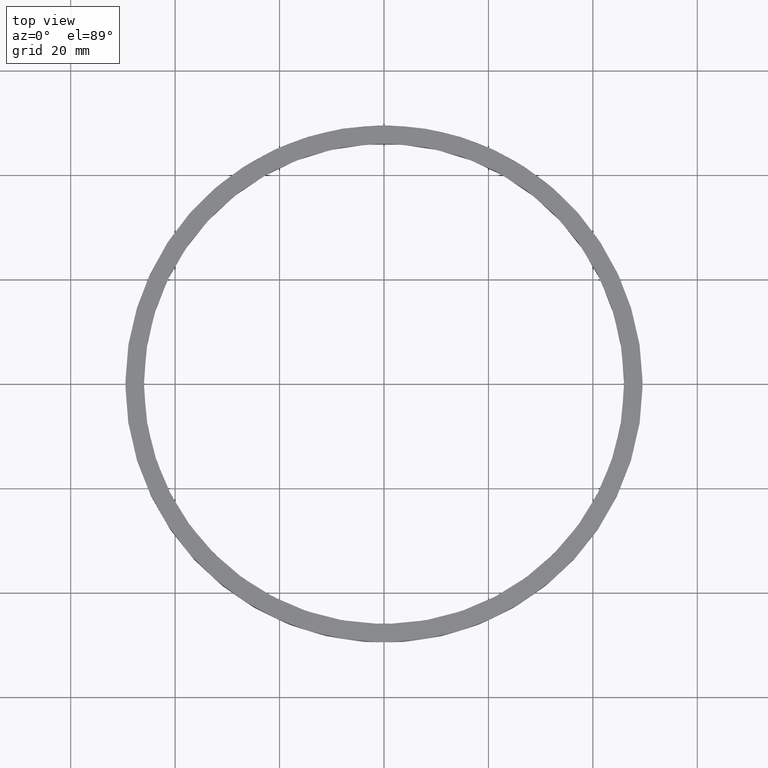
[diagram: clean part render]
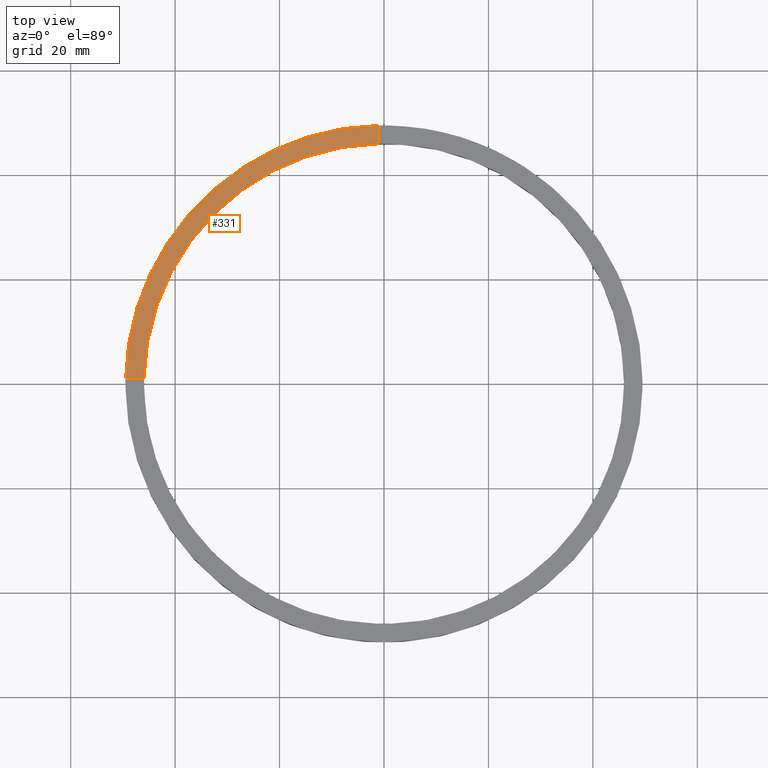
[diagram: same view with one face highlighted and labeled with its STEP entity id]
A machine part, top view. The second image highlights one B-rep face of the part: STEP entity #331.
In plain terms, the highlighted planar face has unit normal (0, 0, 1).
Its self-contained STEP definition (entity closure, byte-faithful):
#47 = EDGE_CURVE ( 'NONE', #665, #526, #174, .T. ) ;
#48 = DIRECTION ( 'NONE',  ( 0.000000000000000000, 0.000000000000000000, 1.000000000000000000 ) ) ;
#101 = AXIS2_PLACEMENT_3D ( 'NONE', #408, #374, #611 ) ;
#174 = LINE ( 'NONE', #350, #709 ) ;
#203 = VECTOR ( 'NONE', #661, 1000.000000000000000 ) ;
#206 = CIRCLE ( 'NONE', #101, 49.50000000000000711 ) ;
#238 = ORIENTED_EDGE ( 'NONE', *, *, #513, .T. ) ;
#247 = VERTEX_POINT ( 'NONE', #524 ) ;
#257 = PLANE ( 'NONE',  #458 ) ;
#260 = DIRECTION ( 'NONE',  ( 1.000000000000000000, 0.000000000000000000, -0.000000000000000000 ) ) ;
#283 = ORIENTED_EDGE ( 'NONE', *, *, #492, .F. ) ;
#305 = EDGE_LOOP ( 'NONE', ( #283, #238, #523, #466 ) ) ;
#331 = ADVANCED_FACE ( 'NONE', ( #727 ), #257, .T. ) ;
#332 = CIRCLE ( 'NONE', #666, 46.00000000000000000 ) ;
#350 = CARTESIAN_POINT ( 'NONE',  ( -39.50000000000019185, 0.9999999999999708011, 4.500000000000000000 ) ) ;
#374 = DIRECTION ( 'NONE',  ( 0.000000000000000000, 0.000000000000000000, 1.000000000000000000 ) ) ;
#408 = CARTESIAN_POINT ( 'NONE',  ( 0.000000000000000000, 0.000000000000000000, 4.500000000000000000 ) ) ;
#436 = VERTEX_POINT ( 'NONE', #770 ) ;
#458 = AXIS2_PLACEMENT_3D ( 'NONE', #672, #735, #260 ) ;
#459 = CARTESIAN_POINT ( 'NONE',  ( 0.000000000000000000, 0.000000000000000000, 4.500000000000000000 ) ) ;
#466 = ORIENTED_EDGE ( 'NONE', *, *, #719, .F. ) ;
#478 = CARTESIAN_POINT ( 'NONE',  ( -45.98912915026767223, 0.9999999999999696909, 4.500000000000000000 ) ) ;
#492 = EDGE_CURVE ( 'NONE', #436, #247, #705, .T. ) ;
#513 = EDGE_CURVE ( 'NONE', #436, #526, #206, .T. ) ;
#523 = ORIENTED_EDGE ( 'NONE', *, *, #47, .F. ) ;
#524 = CARTESIAN_POINT ( 'NONE',  ( -1.000000000000026645, 45.98912915026767223, 4.500000000000000000 ) ) ;
#526 = VERTEX_POINT ( 'NONE', #620 ) ;
#611 = DIRECTION ( 'NONE',  ( 1.000000000000000000, 0.000000000000000000, 0.000000000000000000 ) ) ;
#620 = CARTESIAN_POINT ( 'NONE',  ( -49.48989795907849043, 0.9999999999999688027, 4.500000000000000000 ) ) ;
#661 = DIRECTION ( 'NONE',  ( -0.000000000000000000, -1.000000000000000000, -0.000000000000000000 ) ) ;
#665 = VERTEX_POINT ( 'NONE', #478 ) ;
#666 = AXIS2_PLACEMENT_3D ( 'NONE', #459, #48, #745 ) ;
#672 = CARTESIAN_POINT ( 'NONE',  ( 0.000000000000000000, 0.000000000000000000, 4.500000000000000000 ) ) ;
#705 = LINE ( 'NONE', #779, #203 ) ;
#709 = VECTOR ( 'NONE', #749, 1000.000000000000000 ) ;
#719 = EDGE_CURVE ( 'NONE', #247, #665, #332, .T. ) ;
#727 = FACE_OUTER_BOUND ( 'NONE', #305, .T. ) ;
#735 = DIRECTION ( 'NONE',  ( 0.000000000000000000, 0.000000000000000000, 1.000000000000000000 ) ) ;
#745 = DIRECTION ( 'NONE',  ( 1.000000000000000000, 0.000000000000000000, 0.000000000000000000 ) ) ;
#749 = DIRECTION ( 'NONE',  ( -1.000000000000000000, -1.951563910473907735E-16, 0.000000000000000000 ) ) ;
#770 = CARTESIAN_POINT ( 'NONE',  ( -1.000000000000026645, 49.48989795907849043, 4.500000000000000000 ) ) ;
#779 = CARTESIAN_POINT ( 'NONE',  ( -1.000000000000026645, 39.50000000000000711, 4.500000000000000000 ) ) ;